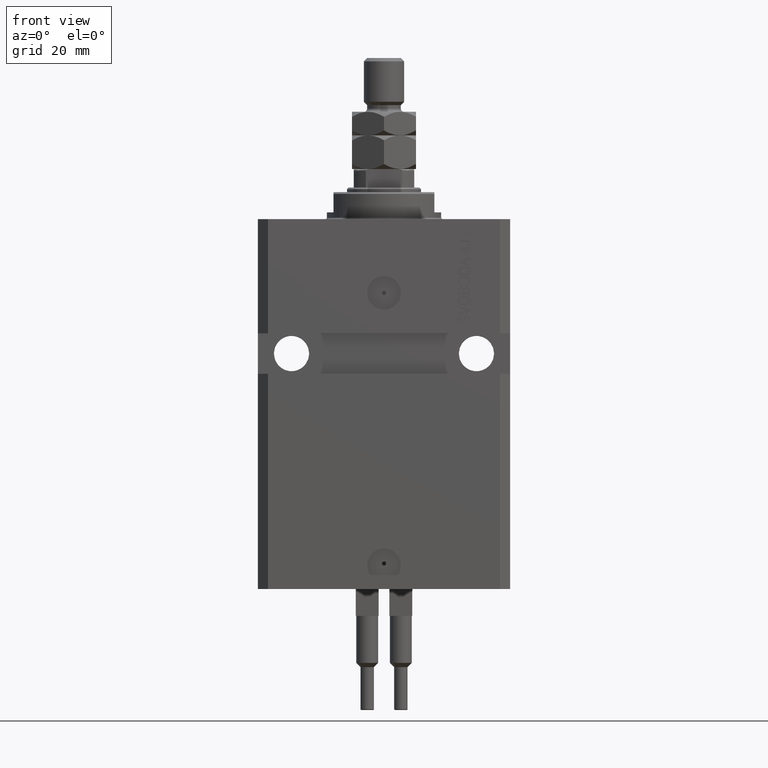
[diagram: clean part render]
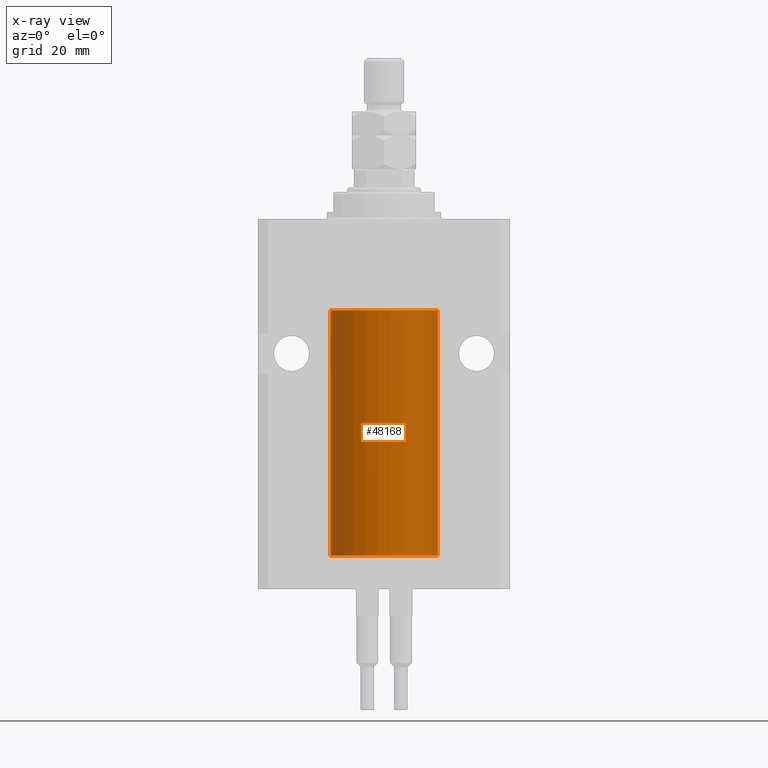
[diagram: x-ray — body ghosted, one internal face saturated and labeled with its STEP entity id]
A machine part, front view, then the same camera in x-ray: the body is ghosted and one INTERNAL B-rep face — a face not visible from any outside direction — is saturated and labeled: STEP entity #48168.
In plain terms, the highlighted cylindrical surface (partial cylindrical patch) has radius 16 mm, axis along (0, 0, 1).
Its self-contained STEP definition (entity closure, byte-faithful):
#385 = DIRECTION ( 'NONE',  ( -0.000000000000000000, -0.000000000000000000, 1.000000000000000000 ) ) ;
#444 = CARTESIAN_POINT ( 'NONE',  ( 16.00000000000000000, 0.000000000000000000, -100.0999999999999943 ) ) ;
#1198 = VERTEX_POINT ( 'NONE', #12959 ) ;
#2397 = ORIENTED_EDGE ( 'NONE', *, *, #46861, .F. ) ;
#2536 = CARTESIAN_POINT ( 'NONE',  ( -16.00000000000000000, 1.959434878635765131E-15, -100.0999999999999943 ) ) ;
#3189 = CARTESIAN_POINT ( 'NONE',  ( 15.98778830858102040, -0.6250000000001221245, -98.16481193282328377 ) ) ;
#3527 = ORIENTED_EDGE ( 'NONE', *, *, #3841, .F. ) ;
#3841 = EDGE_CURVE ( 'NONE', #22284, #38231, #49333, .T. ) ;
#4303 = B_SPLINE_CURVE_WITH_KNOTS ( 'NONE', 3,
 ( #12522, #43235, #15804, #31158, #8987, #31900, #39468, #23584, #47229, #12777 ),
 .UNSPECIFIED., .F., .F.,
 ( 4, 2, 2, 2, 4 ),
 ( 0.001954221322144760863, 0.002442665739568255709, 0.002931110156991750121, 0.003419554574415244966, 0.003907998991838739812 ),
 .UNSPECIFIED. ) ;
#4377 = DIRECTION ( 'NONE',  ( 0.000000000000000000, 0.000000000000000000, 1.000000000000000000 ) ) ;
#4391 = EDGE_CURVE ( 'NONE', #45052, #18157, #4303, .T. ) ;
#4446 = VECTOR ( 'NONE', #12765, 1000.000000000000000 ) ;
#5679 = CIRCLE ( 'NONE', #23355, 16.00000000000000000 ) ;
#6296 = CARTESIAN_POINT ( 'NONE',  ( -16.00000000000000000, 1.959434878635765131E-15, -27.10000000000000142 ) ) ;
#6859 = ORIENTED_EDGE ( 'NONE', *, *, #42499, .T. ) ;
#7244 = CARTESIAN_POINT ( 'NONE',  ( -16.00000000000000000, 1.959434878635765131E-15, -100.0999999999999943 ) ) ;
#8987 = CARTESIAN_POINT ( 'NONE',  ( -15.98779367741636648, -0.6248626626677354912, -98.16539631985041581 ) ) ;
#9797 = ORIENTED_EDGE ( 'NONE', *, *, #14022, .T. ) ;
#11411 = CARTESIAN_POINT ( 'NONE',  ( 15.98778830858101685, -0.6250000000001221245, -98.00000000000000000 ) ) ;
#11862 = EDGE_CURVE ( 'NONE', #16458, #31108, #27614, .T. ) ;
#11964 = FACE_OUTER_BOUND ( 'NONE', #28644, .T. ) ;
#12080 = EDGE_CURVE ( 'NONE', #22284, #18043, #13972, .T. ) ;
#12522 = CARTESIAN_POINT ( 'NONE',  ( -16.00000000000013145, 3.685127046438747128E-13, -98.62500000000343903 ) ) ;
#12765 = DIRECTION ( 'NONE',  ( -0.000000000000000000, -0.000000000000000000, 1.000000000000000000 ) ) ;
#12777 = CARTESIAN_POINT ( 'NONE',  ( -16.00000000000000000, -1.303459030566954747E-14, -97.37500000000000000 ) ) ;
#12959 = CARTESIAN_POINT ( 'NONE',  ( -16.00000000000000000, 1.959434878635765131E-15, -100.0999999999999943 ) ) ;
#13164 = EDGE_CURVE ( 'NONE', #18043, #31108, #31976, .T. ) ;
#13424 = CARTESIAN_POINT ( 'NONE',  ( -16.00000000000013145, 3.685127046438747128E-13, -98.62500000000343903 ) ) ;
#13972 = B_SPLINE_CURVE_WITH_KNOTS ( 'NONE', 3,
 ( #18943, #30543, #46373, #34830, #45884, #11411 ),
 .UNSPECIFIED., .F., .F.,
 ( 4, 2, 4 ),
 ( 0.001954221322144537518, 0.002442922366142198307, 0.002931623410139858662 ),
 .UNSPECIFIED. ) ;
#14022 = EDGE_CURVE ( 'NONE', #18157, #39045, #27326, .T. ) ;
#15289 = ORIENTED_EDGE ( 'NONE', *, *, #4391, .T. ) ;
#15538 = CARTESIAN_POINT ( 'NONE',  ( 16.00000000000000000, 0.000000000000000000, -100.0999999999999943 ) ) ;
#15790 = DIRECTION ( 'NONE',  ( 0.000000000000000000, 0.000000000000000000, 1.000000000000000000 ) ) ;
#15804 = CARTESIAN_POINT ( 'NONE',  ( -15.99708815688950381, -0.3263115027449080552, -98.55740969198227219 ) ) ;
#16458 = VERTEX_POINT ( 'NONE', #15538 ) ;
#16859 = CIRCLE ( 'NONE', #40208, 16.00000000000000000 ) ;
#18043 = VERTEX_POINT ( 'NONE', #37000 ) ;
#18157 = VERTEX_POINT ( 'NONE', #38006 ) ;
#18527 = CARTESIAN_POINT ( 'NONE',  ( 16.00000000000000000, -1.835653844722709729E-15, -98.62500000000000000 ) ) ;
#18943 = CARTESIAN_POINT ( 'NONE',  ( 16.00000000000013145, 3.665532692826917502E-13, -97.37499999999657518 ) ) ;
#22284 = VERTEX_POINT ( 'NONE', #26764 ) ;
#23044 = CYLINDRICAL_SURFACE ( 'NONE', #25793, 16.00000000000000000 ) ;
#23061 = DIRECTION ( 'NONE',  ( -0.000000000000000000, -0.000000000000000000, 1.000000000000000000 ) ) ;
#23355 = AXIS2_PLACEMENT_3D ( 'NONE', #31643, #15790, #30664 ) ;
#23584 = CARTESIAN_POINT ( 'NONE',  ( -15.99707459521409625, -0.3269651631532106140, -97.44291848928558863 ) ) ;
#24929 = LINE ( 'NONE', #2536, #46605 ) ;
#25085 = ORIENTED_EDGE ( 'NONE', *, *, #13164, .T. ) ;
#25793 = AXIS2_PLACEMENT_3D ( 'NONE', #34896, #385, #31090 ) ;
#26182 = CARTESIAN_POINT ( 'NONE',  ( 16.00000000000000000, 0.000000000000000000, -100.0999999999999943 ) ) ;
#26335 = CARTESIAN_POINT ( 'NONE',  ( 15.98778830858101685, -0.6250000000001221245, -98.00000000000000000 ) ) ;
#26764 = CARTESIAN_POINT ( 'NONE',  ( 16.00000000000013145, 3.665532692826917502E-13, -97.37499999999657518 ) ) ;
#27326 = LINE ( 'NONE', #7244, #46319 ) ;
#27614 = LINE ( 'NONE', #444, #4446 ) ;
#28644 = EDGE_LOOP ( 'NONE', ( #2397, #49762, #15289, #9797, #6859, #3527, #46896, #25085, #48804 ) ) ;
#30543 = CARTESIAN_POINT ( 'NONE',  ( 16.00000000000000355, -0.1632201307031984627, -97.37499999999980105 ) ) ;
#30664 = DIRECTION ( 'NONE',  ( 1.000000000000000000, 0.000000000000000000, 0.000000000000000000 ) ) ;
#31090 = DIRECTION ( 'NONE',  ( 1.000000000000000000, 0.000000000000000000, 0.000000000000000000 ) ) ;
#31108 = VERTEX_POINT ( 'NONE', #48969 ) ;
#31158 = CARTESIAN_POINT ( 'NONE',  ( -15.99071965633095793, -0.5569502390237154321, -98.32709508218682970 ) ) ;
#31643 = CARTESIAN_POINT ( 'NONE',  ( 0.000000000000000000, 0.000000000000000000, -100.0999999999999943 ) ) ;
#31900 = CARTESIAN_POINT ( 'NONE',  ( -15.98778295664474491, -0.6251369050462269872, -97.83564325457868449 ) ) ;
#31976 = B_SPLINE_CURVE_WITH_KNOTS ( 'NONE', 3,
 ( #26335, #3189, #38439, #37953, #45960, #18527 ),
 .UNSPECIFIED., .F., .F.,
 ( 4, 2, 4 ),
 ( 0.002931623410139858662, 0.003419811200989293816, 0.003907998991838729404 ),
 .UNSPECIFIED. ) ;
#34830 = CARTESIAN_POINT ( 'NONE',  ( 15.99071289786271954, -0.5571474671814620194, -97.67319665488821556 ) ) ;
#34896 = CARTESIAN_POINT ( 'NONE',  ( 0.000000000000000000, 0.000000000000000000, -100.0999999999999943 ) ) ;
#36550 = DIRECTION ( 'NONE',  ( -0.000000000000000000, -0.000000000000000000, 1.000000000000000000 ) ) ;
#37000 = CARTESIAN_POINT ( 'NONE',  ( 15.98778830858101685, -0.6250000000001221245, -98.00000000000000000 ) ) ;
#37953 = CARTESIAN_POINT ( 'NONE',  ( 15.99707785788560521, -0.3267997233067475582, -98.55715215276643448 ) ) ;
#38006 = CARTESIAN_POINT ( 'NONE',  ( -16.00000000000000000, -1.303459030566954747E-14, -97.37500000000000000 ) ) ;
#38171 = CARTESIAN_POINT ( 'NONE',  ( 0.000000000000000000, 0.000000000000000000, -27.10000000000000142 ) ) ;
#38231 = VERTEX_POINT ( 'NONE', #43764 ) ;
#38439 = CARTESIAN_POINT ( 'NONE',  ( 15.99070553365076996, -0.5573460204199470747, -98.32646897863004654 ) ) ;
#39045 = VERTEX_POINT ( 'NONE', #6296 ) ;
#39468 = CARTESIAN_POINT ( 'NONE',  ( -15.99069874693027948, -0.5575440858643423425, -97.67382425011452085 ) ) ;
#40208 = AXIS2_PLACEMENT_3D ( 'NONE', #38171, #4377, #45934 ) ;
#41574 = DIRECTION ( 'NONE',  ( -0.000000000000000000, -0.000000000000000000, 1.000000000000000000 ) ) ;
#42499 = EDGE_CURVE ( 'NONE', #39045, #38231, #16859, .T. ) ;
#43235 = CARTESIAN_POINT ( 'NONE',  ( -16.00000000000000711, -0.1631344205875864539, -98.62500000000012790 ) ) ;
#43764 = CARTESIAN_POINT ( 'NONE',  ( 16.00000000000000000, 0.000000000000000000, -27.10000000000000142 ) ) ;
#45052 = VERTEX_POINT ( 'NONE', #13424 ) ;
#45884 = CARTESIAN_POINT ( 'NONE',  ( 15.98778830858102040, -0.6250000000001221245, -97.83501479319285465 ) ) ;
#45934 = DIRECTION ( 'NONE',  ( 1.000000000000000000, 0.000000000000000000, 0.000000000000000000 ) ) ;
#45960 = CARTESIAN_POINT ( 'NONE',  ( 16.00000000000000000, -0.1650734421240358518, -98.62500000000002842 ) ) ;
#46224 = EDGE_CURVE ( 'NONE', #1198, #45052, #24929, .T. ) ;
#46319 = VECTOR ( 'NONE', #23061, 1000.000000000000000 ) ;
#46373 = CARTESIAN_POINT ( 'NONE',  ( 15.99708487730508821, -0.3264777333248483626, -97.44266166809921970 ) ) ;
#46605 = VECTOR ( 'NONE', #36550, 1000.000000000000000 ) ;
#46861 = EDGE_CURVE ( 'NONE', #1198, #16458, #5679, .T. ) ;
#46896 = ORIENTED_EDGE ( 'NONE', *, *, #12080, .T. ) ;
#47229 = CARTESIAN_POINT ( 'NONE',  ( -16.00000000000000000, -0.1651602165840288794, -97.37500000000001421 ) ) ;
#47664 = VECTOR ( 'NONE', #41574, 1000.000000000000000 ) ;
#48168 = ADVANCED_FACE ( 'NONE', ( #11964 ), #23044, .F. ) ;
#48804 = ORIENTED_EDGE ( 'NONE', *, *, #11862, .F. ) ;
#48969 = CARTESIAN_POINT ( 'NONE',  ( 16.00000000000000000, -1.835653844722709729E-15, -98.62500000000000000 ) ) ;
#49333 = LINE ( 'NONE', #26182, #47664 ) ;
#49762 = ORIENTED_EDGE ( 'NONE', *, *, #46224, .T. ) ;